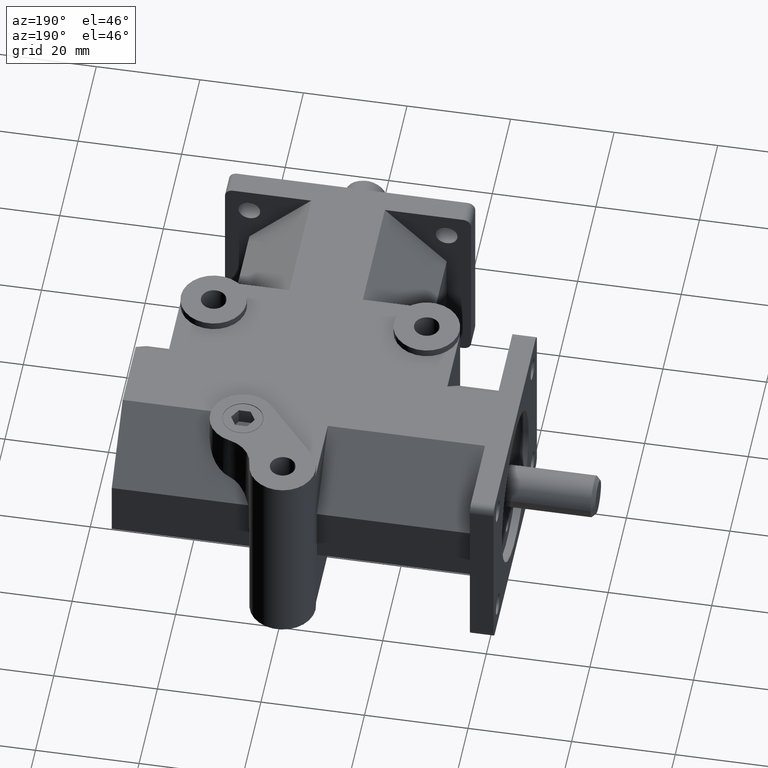
[diagram: clean part render]
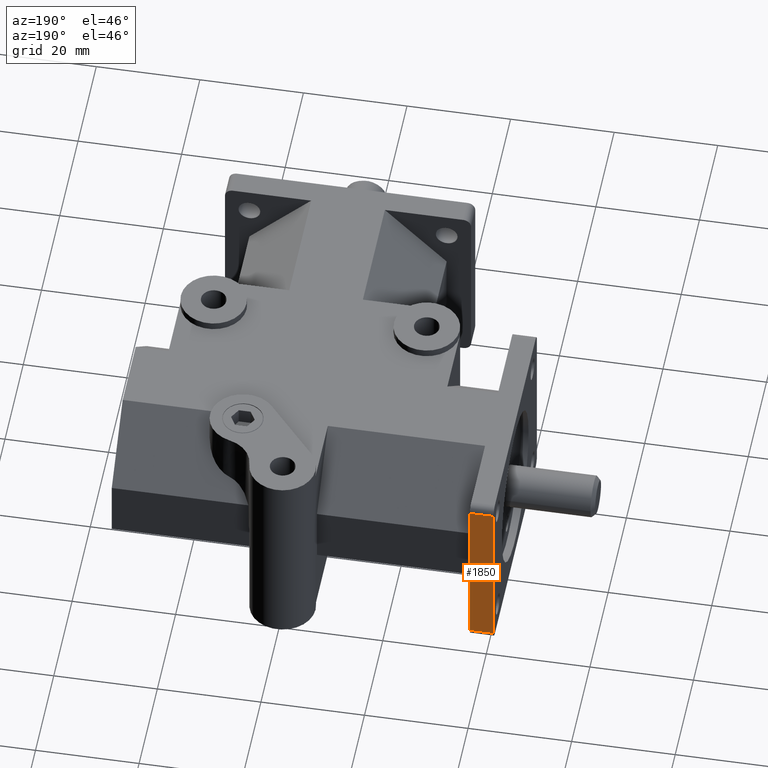
[diagram: same view with one face highlighted and labeled with its STEP entity id]
A machine part, auxiliary view. The second image highlights one B-rep face of the part: STEP entity #1850.
In plain terms, the highlighted planar face has unit normal (0, 1, 0).
Its self-contained STEP definition (entity closure, byte-faithful):
#87=PLANE('',#2039);
#178=FACE_OUTER_BOUND('',#305,.T.);
#305=EDGE_LOOP('',(#1534,#1535,#1536,#1537));
#479=LINE('',#2830,#652);
#481=LINE('',#2839,#654);
#506=LINE('',#2897,#679);
#580=LINE('',#3073,#753);
#652=VECTOR('',#2284,1.);
#654=VECTOR('',#2292,1.);
#679=VECTOR('',#2339,1.);
#753=VECTOR('',#2491,1.);
#854=VERTEX_POINT('',#2827);
#855=VERTEX_POINT('',#2829);
#858=VERTEX_POINT('',#2836);
#859=VERTEX_POINT('',#2838);
#1041=EDGE_CURVE('',#854,#855,#479,.T.);
#1045=EDGE_CURVE('',#858,#859,#481,.T.);
#1078=EDGE_CURVE('',#854,#859,#506,.T.);
#1168=EDGE_CURVE('',#855,#858,#580,.T.);
#1534=ORIENTED_EDGE('',*,*,#1041,.F.);
#1535=ORIENTED_EDGE('',*,*,#1078,.T.);
#1536=ORIENTED_EDGE('',*,*,#1045,.F.);
#1537=ORIENTED_EDGE('',*,*,#1168,.F.);
#1850=ADVANCED_FACE('',(#178),#87,.T.);
#2039=AXIS2_PLACEMENT_3D('',#3080,#2498,#2499);
#2284=DIRECTION('',(1.,0.,0.));
#2292=DIRECTION('',(-1.,0.,0.));
#2339=DIRECTION('',(0.,0.,1.));
#2491=DIRECTION('',(0.,0.,1.));
#2498=DIRECTION('center_axis',(0.,1.,0.));
#2499=DIRECTION('ref_axis',(0.,0.,-1.));
#2827=CARTESIAN_POINT('',(-41.275,79.3115,-16.002));
#2829=CARTESIAN_POINT('',(-36.703,79.3115,-16.002));
#2830=CARTESIAN_POINT('',(-20.6375,79.3115,-16.002));
#2836=CARTESIAN_POINT('',(-36.703,79.3115,16.002));
#2838=CARTESIAN_POINT('',(-41.275,79.3115,16.002));
#2839=CARTESIAN_POINT('',(-20.6375,79.3115,16.002));
#2897=CARTESIAN_POINT('',(-41.275,79.3115,0.));
#3073=CARTESIAN_POINT('',(-36.703,79.3115,0.));
#3080=CARTESIAN_POINT('Origin',(-41.275,79.3115,0.));